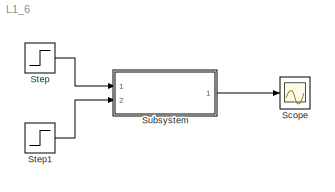
MODEL L1_6
KIND model
BLOCK [Scope] Scope
  DataFormat = StructureWithTime
  NumInputPorts = 1
  Ports = [1]
  ZoomMode = yonly
BLOCK [Step] Step
  SampleTime = 0
BLOCK [Step] Step1
  SampleTime = 0
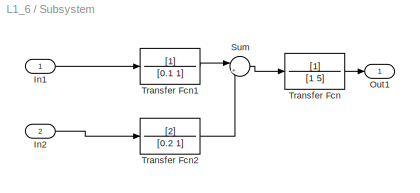
BLOCK [SubSystem] Subsystem
  MinAlgLoopOccurrences = off
  Ports = [2, 1]
  RTWSystemCode = Auto
  TreatAsAtomicUnit = off
BLOCK [Inport] Subsystem/In1
  IconDisplay = Port number
  LatchInput = off
  Port = 1
BLOCK [Inport] Subsystem/In2
  IconDisplay = Port number
  LatchInput = off
  Port = 2
BLOCK [Outport] Subsystem/Out1
  BusOutputAsStruct = off
  IconDisplay = Port number
BLOCK [Sum] Subsystem/Sum
  IconShape = round
  InputSameDT = off
  Inputs = |++
  OutDataTypeMode = Inherit via internal rule
  Ports = [2, 1]
  SaturateOnIntegerOverflow = off
BLOCK [TransferFcn] Subsystem/Transfer Fcn
  Denominator = [1 5]
BLOCK [TransferFcn] Subsystem/Transfer Fcn1
  Denominator = [0.1 1]
BLOCK [TransferFcn] Subsystem/Transfer Fcn2
  Denominator = [0.2 1]
  Numerator = [2]
LINE Step1:1 -> Subsystem:2
LINE Step:1 -> Subsystem:1
LINE Subsystem/In1:1 -> Subsystem/Transfer Fcn1:1
LINE Subsystem/In2:1 -> Subsystem/Transfer Fcn2:1
LINE Subsystem/Sum:1 -> Subsystem/Transfer Fcn:1
LINE Subsystem/Transfer Fcn1:1 -> Subsystem/Sum:1
LINE Subsystem/Transfer Fcn2:1 -> Subsystem/Sum:2
LINE Subsystem/Transfer Fcn:1 -> Subsystem/Out1:1
LINE Subsystem:1 -> Scope:1
